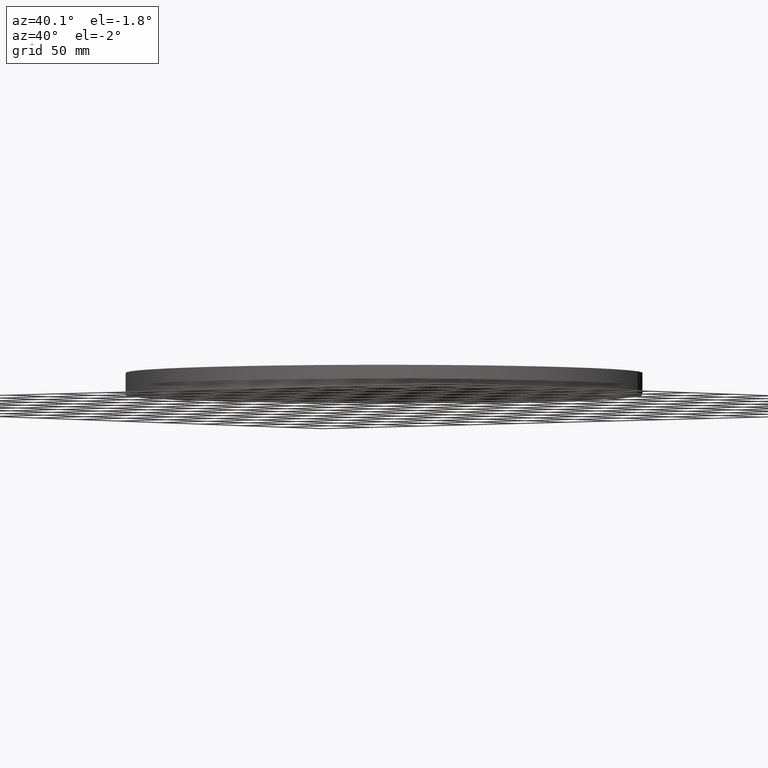
[diagram: clean part render]
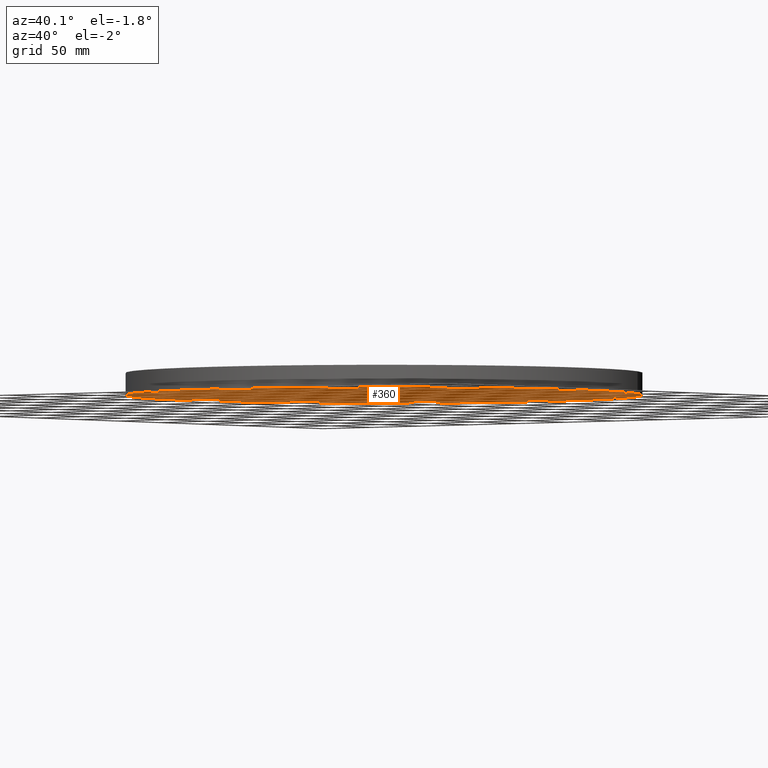
[diagram: same view with one face highlighted and labeled with its STEP entity id]
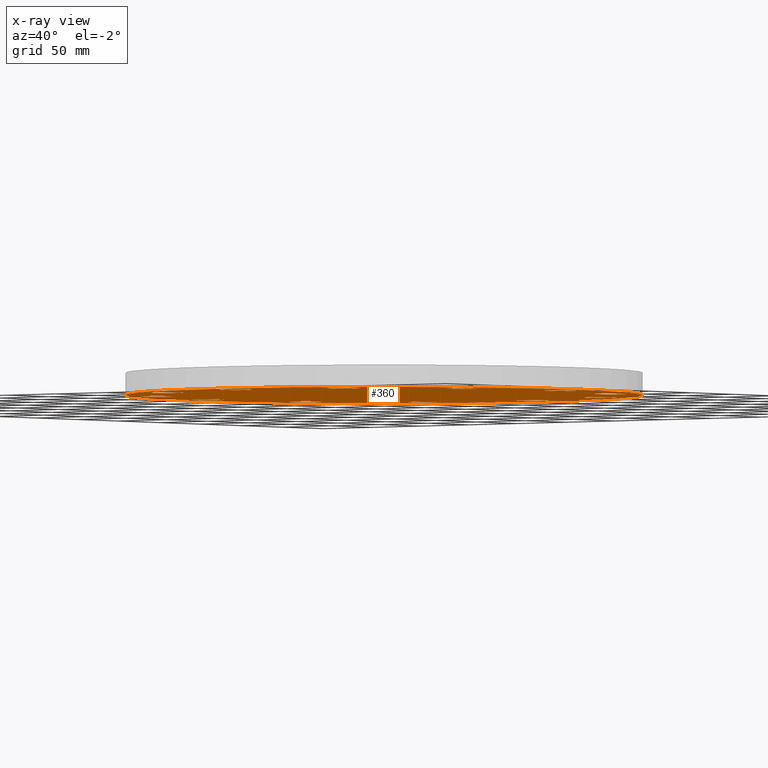
[diagram: x-ray of the same camera — body ghosted, the highlighted face saturated]
A machine part, auxiliary view. The second image highlights one B-rep face of the part: STEP entity #360.
The next image is the same camera in x-ray: the body ghosted, the highlighted face saturated — about 0% of this face is hidden behind the body in this view.
In plain terms, the highlighted planar face has unit normal (0, 0, 1).
Its self-contained STEP definition (entity closure, byte-faithful):
#51=AXIS2_PLACEMENT_3D('Circle Axis2P3D',#49,#50,$) ;
#77=AXIS2_PLACEMENT_3D('Circle Axis2P3D',#75,#76,$) ;
#122=AXIS2_PLACEMENT_3D('Circle Axis2P3D',#120,#121,$) ;
#139=AXIS2_PLACEMENT_3D('Circle Axis2P3D',#137,#138,$) ;
#152=AXIS2_PLACEMENT_3D('Plane Axis2P3D',#149,#150,#151) ;
#164=AXIS2_PLACEMENT_3D('Circle Axis2P3D',#162,#163,$) ;
#173=AXIS2_PLACEMENT_3D('Circle Axis2P3D',#171,#172,$) ;
#182=AXIS2_PLACEMENT_3D('Circle Axis2P3D',#180,#181,$) ;
#191=AXIS2_PLACEMENT_3D('Circle Axis2P3D',#189,#190,$) ;
#200=AXIS2_PLACEMENT_3D('Circle Axis2P3D',#198,#199,$) ;
#209=AXIS2_PLACEMENT_3D('Circle Axis2P3D',#207,#208,$) ;
#218=AXIS2_PLACEMENT_3D('Circle Axis2P3D',#216,#217,$) ;
#227=AXIS2_PLACEMENT_3D('Circle Axis2P3D',#225,#226,$) ;
#236=AXIS2_PLACEMENT_3D('Circle Axis2P3D',#234,#235,$) ;
#245=AXIS2_PLACEMENT_3D('Circle Axis2P3D',#243,#244,$) ;
#254=AXIS2_PLACEMENT_3D('Circle Axis2P3D',#252,#253,$) ;
#263=AXIS2_PLACEMENT_3D('Circle Axis2P3D',#261,#262,$) ;
#272=AXIS2_PLACEMENT_3D('Circle Axis2P3D',#270,#271,$) ;
#281=AXIS2_PLACEMENT_3D('Circle Axis2P3D',#279,#280,$) ;
#290=AXIS2_PLACEMENT_3D('Circle Axis2P3D',#288,#289,$) ;
#299=AXIS2_PLACEMENT_3D('Circle Axis2P3D',#297,#298,$) ;
#308=AXIS2_PLACEMENT_3D('Circle Axis2P3D',#306,#307,$) ;
#317=AXIS2_PLACEMENT_3D('Circle Axis2P3D',#315,#316,$) ;
#326=AXIS2_PLACEMENT_3D('Circle Axis2P3D',#324,#325,$) ;
#335=AXIS2_PLACEMENT_3D('Circle Axis2P3D',#333,#334,$) ;
#344=AXIS2_PLACEMENT_3D('Circle Axis2P3D',#342,#343,$) ;
#353=AXIS2_PLACEMENT_3D('Circle Axis2P3D',#351,#352,$) ;
#44=CARTESIAN_POINT('Vertex',(6.68620871908,0.239712769303,0.)) ;
#49=CARTESIAN_POINT('Axis2P3D Location',(7.12500000003,0.,0.)) ;
#53=CARTESIAN_POINT('Vertex',(7.56379128098,-0.239712769303,0.)) ;
#75=CARTESIAN_POINT('Axis2P3D Location',(7.12500000003,0.,0.)) ;
#101=CARTESIAN_POINT('Vertex',(7.02066049515,3.83540430885,0.)) ;
#117=CARTESIAN_POINT('Vertex',(-7.02066049515,-3.83540430885,0.)) ;
#120=CARTESIAN_POINT('Axis2P3D Location',(0.,0.,0.)) ;
#137=CARTESIAN_POINT('Axis2P3D Location',(0.,0.,0.)) ;
#149=CARTESIAN_POINT('Axis2P3D Location',(0.,0.,0.)) ;
#162=CARTESIAN_POINT('Axis2P3D Location',(6.17043100199,3.56250000001,0.)) ;
#166=CARTESIAN_POINT('Vertex',(5.67057022108,3.55070170737,0.)) ;
#168=CARTESIAN_POINT('Vertex',(6.6702917829,3.57429829266,0.)) ;
#171=CARTESIAN_POINT('Axis2P3D Location',(6.17043100199,3.56250000001,0.)) ;
#180=CARTESIAN_POINT('Axis2P3D Location',(3.56250000001,6.17043100199,0.)) ;
#184=CARTESIAN_POINT('Vertex',(3.13550701171,5.91028299038,0.)) ;
#186=CARTESIAN_POINT('Vertex',(3.98949298832,6.4305790136,0.)) ;
#189=CARTESIAN_POINT('Axis2P3D Location',(3.56250000001,6.17043100199,0.)) ;
#198=CARTESIAN_POINT('Axis2P3D Location',(-2.09805925913E-016,7.12500000003,0.)) ;
#202=CARTESIAN_POINT('Vertex',(-0.239712769303,6.68620871908,0.)) ;
#204=CARTESIAN_POINT('Vertex',(0.239712769303,7.56379128098,0.)) ;
#207=CARTESIAN_POINT('Axis2P3D Location',(-8.39223703654E-016,7.12500000003,0.)) ;
#216=CARTESIAN_POINT('Axis2P3D Location',(-3.56250000001,6.17043100199,0.)) ;
#220=CARTESIAN_POINT('Vertex',(-3.55070170737,5.67057022108,0.)) ;
#222=CARTESIAN_POINT('Vertex',(-3.57429829266,6.6702917829,0.)) ;
#225=CARTESIAN_POINT('Axis2P3D Location',(-3.56250000001,6.17043100199,0.)) ;
#234=CARTESIAN_POINT('Axis2P3D Location',(-6.17043100199,3.56250000001,0.)) ;
#238=CARTESIAN_POINT('Vertex',(-5.91028299038,3.13550701171,0.)) ;
#240=CARTESIAN_POINT('Vertex',(-6.4305790136,3.98949298832,0.)) ;
#243=CARTESIAN_POINT('Axis2P3D Location',(-6.17043100199,3.56250000001,0.)) ;
#252=CARTESIAN_POINT('Axis2P3D Location',(-7.12500000003,5.59482469102E-016,0.)) ;
#256=CARTESIAN_POINT('Vertex',(-6.68620871908,-0.239712769303,0.)) ;
#258=CARTESIAN_POINT('Vertex',(-7.56379128098,0.239712769303,0.)) ;
#261=CARTESIAN_POINT('Axis2P3D Location',(-7.12500000003,1.1189649382E-015,0.)) ;
#270=CARTESIAN_POINT('Axis2P3D Location',(-6.17043100199,-3.56250000001,0.)) ;
#274=CARTESIAN_POINT('Vertex',(-5.67057022108,-3.55070170737,0.)) ;
#276=CARTESIAN_POINT('Vertex',(-6.6702917829,-3.57429829266,0.)) ;
#279=CARTESIAN_POINT('Axis2P3D Location',(-6.17043100199,-3.56250000001,0.)) ;
#288=CARTESIAN_POINT('Axis2P3D Location',(-3.56250000001,-6.17043100199,0.)) ;
#292=CARTESIAN_POINT('Vertex',(-3.13550701171,-5.91028299038,0.)) ;
#294=CARTESIAN_POINT('Vertex',(-3.98949298832,-6.4305790136,0.)) ;
#297=CARTESIAN_POINT('Axis2P3D Location',(-3.56250000001,-6.17043100199,0.)) ;
#306=CARTESIAN_POINT('Axis2P3D Location',(-1.81831802458E-015,-7.12500000003,0.)) ;
#310=CARTESIAN_POINT('Vertex',(0.239712769303,-6.68620871908,0.)) ;
#312=CARTESIAN_POINT('Vertex',(-0.239712769303,-7.56379128098,0.)) ;
#315=CARTESIAN_POINT('Axis2P3D Location',(-1.39870617276E-015,-7.12500000003,0.)) ;
#324=CARTESIAN_POINT('Axis2P3D Location',(3.56250000001,-6.17043100199,0.)) ;
#328=CARTESIAN_POINT('Vertex',(3.55070170737,-5.67057022108,0.)) ;
#330=CARTESIAN_POINT('Vertex',(3.57429829266,-6.6702917829,0.)) ;
#333=CARTESIAN_POINT('Axis2P3D Location',(3.56250000001,-6.17043100199,0.)) ;
#342=CARTESIAN_POINT('Axis2P3D Location',(6.17043100199,-3.56250000001,0.)) ;
#346=CARTESIAN_POINT('Vertex',(5.91028299038,-3.13550701171,0.)) ;
#348=CARTESIAN_POINT('Vertex',(6.4305790136,-3.98949298832,0.)) ;
#351=CARTESIAN_POINT('Axis2P3D Location',(6.17043100199,-3.56250000001,0.)) ;
#50=DIRECTION('Axis2P3D Direction',(0.,-0.,-0.0393700787402)) ;
#76=DIRECTION('Axis2P3D Direction',(0.,-0.,-0.0393700787402)) ;
#121=DIRECTION('Axis2P3D Direction',(0.,0.,0.0393700787402)) ;
#138=DIRECTION('Axis2P3D Direction',(0.,0.,0.0393700787402)) ;
#150=DIRECTION('Axis2P3D Direction',(0.,0.,0.0393700787402)) ;
#151=DIRECTION('Axis2P3D XDirection',(0.0393700787402,0.,0.)) ;
#163=DIRECTION('Axis2P3D Direction',(0.,0.,0.0393700787402)) ;
#172=DIRECTION('Axis2P3D Direction',(0.,0.,0.0393700787402)) ;
#181=DIRECTION('Axis2P3D Direction',(0.,0.,0.0393700787402)) ;
#190=DIRECTION('Axis2P3D Direction',(0.,0.,0.0393700787402)) ;
#199=DIRECTION('Axis2P3D Direction',(0.,0.,0.0393700787402)) ;
#208=DIRECTION('Axis2P3D Direction',(0.,0.,0.0393700787402)) ;
#217=DIRECTION('Axis2P3D Direction',(0.,0.,0.0393700787402)) ;
#226=DIRECTION('Axis2P3D Direction',(0.,0.,0.0393700787402)) ;
#235=DIRECTION('Axis2P3D Direction',(0.,0.,0.0393700787402)) ;
#244=DIRECTION('Axis2P3D Direction',(0.,0.,0.0393700787402)) ;
#253=DIRECTION('Axis2P3D Direction',(0.,0.,0.0393700787402)) ;
#262=DIRECTION('Axis2P3D Direction',(0.,0.,0.0393700787402)) ;
#271=DIRECTION('Axis2P3D Direction',(0.,0.,0.0393700787402)) ;
#280=DIRECTION('Axis2P3D Direction',(0.,0.,0.0393700787402)) ;
#289=DIRECTION('Axis2P3D Direction',(0.,0.,0.0393700787402)) ;
#298=DIRECTION('Axis2P3D Direction',(0.,0.,0.0393700787402)) ;
#307=DIRECTION('Axis2P3D Direction',(0.,0.,0.0393700787402)) ;
#316=DIRECTION('Axis2P3D Direction',(0.,0.,0.0393700787402)) ;
#325=DIRECTION('Axis2P3D Direction',(0.,0.,0.0393700787402)) ;
#334=DIRECTION('Axis2P3D Direction',(0.,0.,0.0393700787402)) ;
#343=DIRECTION('Axis2P3D Direction',(0.,0.,0.0393700787402)) ;
#352=DIRECTION('Axis2P3D Direction',(0.,0.,0.0393700787402)) ;
#155=ORIENTED_EDGE('',*,*,#124,.F.) ;
#156=ORIENTED_EDGE('',*,*,#141,.F.) ;
#159=ORIENTED_EDGE('',*,*,#55,.T.) ;
#160=ORIENTED_EDGE('',*,*,#79,.T.) ;
#177=ORIENTED_EDGE('',*,*,#170,.T.) ;
#178=ORIENTED_EDGE('',*,*,#175,.T.) ;
#195=ORIENTED_EDGE('',*,*,#188,.T.) ;
#196=ORIENTED_EDGE('',*,*,#193,.T.) ;
#213=ORIENTED_EDGE('',*,*,#206,.T.) ;
#214=ORIENTED_EDGE('',*,*,#211,.T.) ;
#231=ORIENTED_EDGE('',*,*,#224,.T.) ;
#232=ORIENTED_EDGE('',*,*,#229,.T.) ;
#249=ORIENTED_EDGE('',*,*,#242,.T.) ;
#250=ORIENTED_EDGE('',*,*,#247,.T.) ;
#267=ORIENTED_EDGE('',*,*,#260,.T.) ;
#268=ORIENTED_EDGE('',*,*,#265,.T.) ;
#285=ORIENTED_EDGE('',*,*,#278,.T.) ;
#286=ORIENTED_EDGE('',*,*,#283,.T.) ;
#303=ORIENTED_EDGE('',*,*,#296,.T.) ;
#304=ORIENTED_EDGE('',*,*,#301,.T.) ;
#321=ORIENTED_EDGE('',*,*,#314,.T.) ;
#322=ORIENTED_EDGE('',*,*,#319,.T.) ;
#339=ORIENTED_EDGE('',*,*,#332,.T.) ;
#340=ORIENTED_EDGE('',*,*,#337,.T.) ;
#357=ORIENTED_EDGE('',*,*,#350,.T.) ;
#358=ORIENTED_EDGE('',*,*,#355,.T.) ;
#161=FACE_BOUND('',#158,.T.) ;
#179=FACE_BOUND('',#176,.T.) ;
#197=FACE_BOUND('',#194,.T.) ;
#215=FACE_BOUND('',#212,.T.) ;
#233=FACE_BOUND('',#230,.T.) ;
#251=FACE_BOUND('',#248,.T.) ;
#269=FACE_BOUND('',#266,.T.) ;
#287=FACE_BOUND('',#284,.T.) ;
#305=FACE_BOUND('',#302,.T.) ;
#323=FACE_BOUND('',#320,.T.) ;
#341=FACE_BOUND('',#338,.T.) ;
#359=FACE_BOUND('',#356,.T.) ;
#360=ADVANCED_FACE('PartBody',(#157,#161,#179,#197,#215,#233,#251,#269,#287,#305,#323,#341,#359),#153,.F.) ;
#52=CIRCLE('generated circle',#51,0.500000000002) ;
#78=CIRCLE('generated circle',#77,0.500000000002) ;
#123=CIRCLE('generated circle',#122,8.00000000003) ;
#140=CIRCLE('generated circle',#139,8.00000000003) ;
#165=CIRCLE('generated circle',#164,0.500000000002) ;
#174=CIRCLE('generated circle',#173,0.500000000002) ;
#183=CIRCLE('generated circle',#182,0.500000000002) ;
#192=CIRCLE('generated circle',#191,0.500000000002) ;
#201=CIRCLE('generated circle',#200,0.500000000002) ;
#210=CIRCLE('generated circle',#209,0.500000000002) ;
#219=CIRCLE('generated circle',#218,0.500000000002) ;
#228=CIRCLE('generated circle',#227,0.500000000002) ;
#237=CIRCLE('generated circle',#236,0.500000000002) ;
#246=CIRCLE('generated circle',#245,0.500000000002) ;
#255=CIRCLE('generated circle',#254,0.500000000002) ;
#264=CIRCLE('generated circle',#263,0.500000000002) ;
#273=CIRCLE('generated circle',#272,0.500000000002) ;
#282=CIRCLE('generated circle',#281,0.500000000002) ;
#291=CIRCLE('generated circle',#290,0.500000000002) ;
#300=CIRCLE('generated circle',#299,0.500000000002) ;
#309=CIRCLE('generated circle',#308,0.500000000002) ;
#318=CIRCLE('generated circle',#317,0.500000000002) ;
#327=CIRCLE('generated circle',#326,0.500000000002) ;
#336=CIRCLE('generated circle',#335,0.500000000002) ;
#345=CIRCLE('generated circle',#344,0.500000000002) ;
#354=CIRCLE('generated circle',#353,0.500000000002) ;
#55=EDGE_CURVE('',#54,#45,#52,.F.) ;
#79=EDGE_CURVE('',#45,#54,#78,.F.) ;
#124=EDGE_CURVE('',#118,#102,#123,.T.) ;
#141=EDGE_CURVE('',#102,#118,#140,.T.) ;
#170=EDGE_CURVE('',#167,#169,#165,.T.) ;
#175=EDGE_CURVE('',#169,#167,#174,.T.) ;
#188=EDGE_CURVE('',#185,#187,#183,.T.) ;
#193=EDGE_CURVE('',#187,#185,#192,.T.) ;
#206=EDGE_CURVE('',#203,#205,#201,.T.) ;
#211=EDGE_CURVE('',#205,#203,#210,.T.) ;
#224=EDGE_CURVE('',#221,#223,#219,.T.) ;
#229=EDGE_CURVE('',#223,#221,#228,.T.) ;
#242=EDGE_CURVE('',#239,#241,#237,.T.) ;
#247=EDGE_CURVE('',#241,#239,#246,.T.) ;
#260=EDGE_CURVE('',#257,#259,#255,.T.) ;
#265=EDGE_CURVE('',#259,#257,#264,.T.) ;
#278=EDGE_CURVE('',#275,#277,#273,.T.) ;
#283=EDGE_CURVE('',#277,#275,#282,.T.) ;
#296=EDGE_CURVE('',#293,#295,#291,.T.) ;
#301=EDGE_CURVE('',#295,#293,#300,.T.) ;
#314=EDGE_CURVE('',#311,#313,#309,.T.) ;
#319=EDGE_CURVE('',#313,#311,#318,.T.) ;
#332=EDGE_CURVE('',#329,#331,#327,.T.) ;
#337=EDGE_CURVE('',#331,#329,#336,.T.) ;
#350=EDGE_CURVE('',#347,#349,#345,.T.) ;
#355=EDGE_CURVE('',#349,#347,#354,.T.) ;
#154=EDGE_LOOP('',(#155,#156)) ;
#158=EDGE_LOOP('',(#159,#160)) ;
#176=EDGE_LOOP('',(#177,#178)) ;
#194=EDGE_LOOP('',(#195,#196)) ;
#212=EDGE_LOOP('',(#213,#214)) ;
#230=EDGE_LOOP('',(#231,#232)) ;
#248=EDGE_LOOP('',(#249,#250)) ;
#266=EDGE_LOOP('',(#267,#268)) ;
#284=EDGE_LOOP('',(#285,#286)) ;
#302=EDGE_LOOP('',(#303,#304)) ;
#320=EDGE_LOOP('',(#321,#322)) ;
#338=EDGE_LOOP('',(#339,#340)) ;
#356=EDGE_LOOP('',(#357,#358)) ;
#157=FACE_OUTER_BOUND('',#154,.T.) ;
#153=PLANE('',#152) ;
#45=VERTEX_POINT('',#44) ;
#54=VERTEX_POINT('',#53) ;
#102=VERTEX_POINT('',#101) ;
#118=VERTEX_POINT('',#117) ;
#167=VERTEX_POINT('',#166) ;
#169=VERTEX_POINT('',#168) ;
#185=VERTEX_POINT('',#184) ;
#187=VERTEX_POINT('',#186) ;
#203=VERTEX_POINT('',#202) ;
#205=VERTEX_POINT('',#204) ;
#221=VERTEX_POINT('',#220) ;
#223=VERTEX_POINT('',#222) ;
#239=VERTEX_POINT('',#238) ;
#241=VERTEX_POINT('',#240) ;
#257=VERTEX_POINT('',#256) ;
#259=VERTEX_POINT('',#258) ;
#275=VERTEX_POINT('',#274) ;
#277=VERTEX_POINT('',#276) ;
#293=VERTEX_POINT('',#292) ;
#295=VERTEX_POINT('',#294) ;
#311=VERTEX_POINT('',#310) ;
#313=VERTEX_POINT('',#312) ;
#329=VERTEX_POINT('',#328) ;
#331=VERTEX_POINT('',#330) ;
#347=VERTEX_POINT('',#346) ;
#349=VERTEX_POINT('',#348) ;